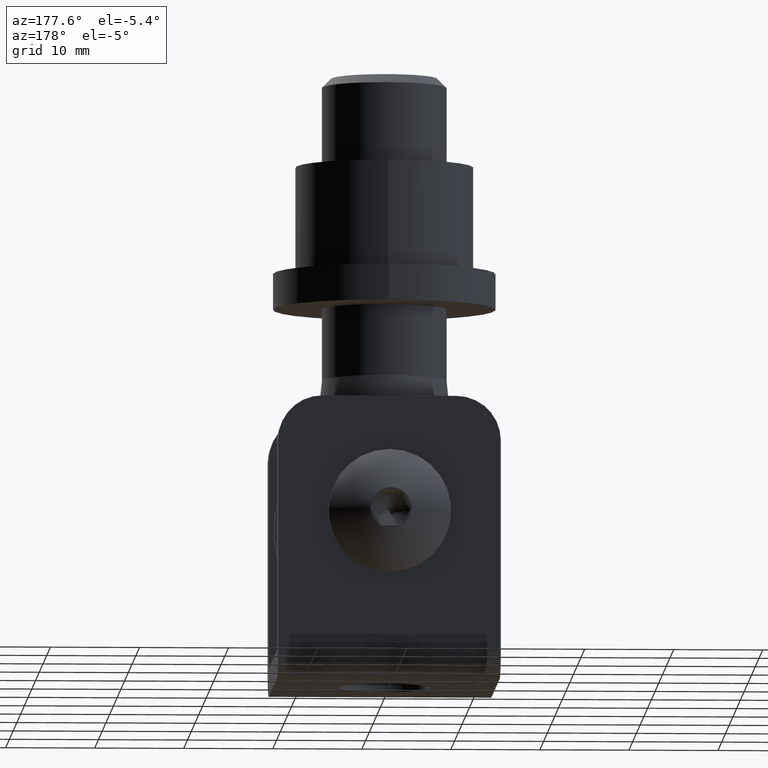
[diagram: clean part render]
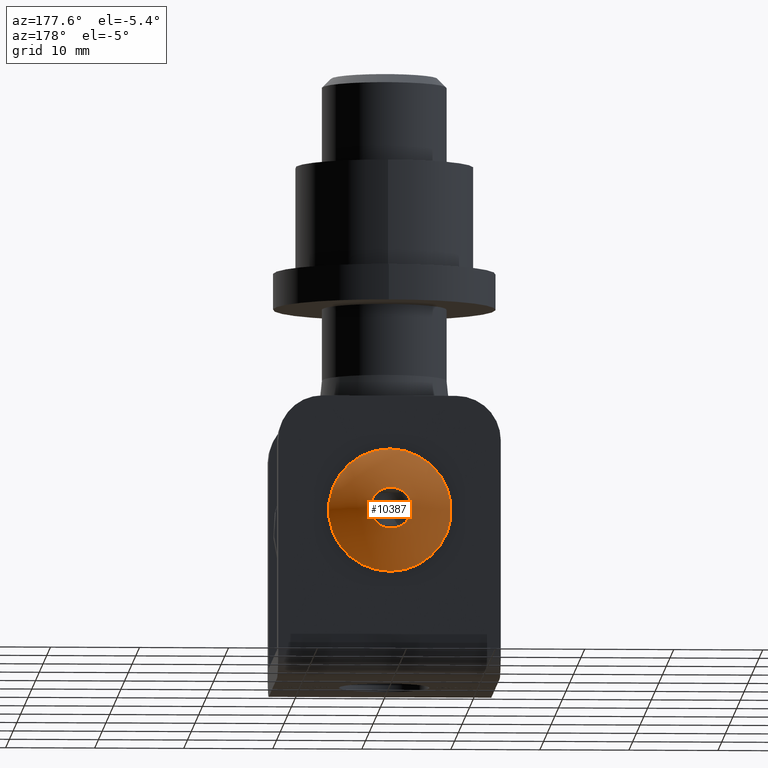
[diagram: same view with one face highlighted and labeled with its STEP entity id]
A machine part, auxiliary view. The second image highlights one B-rep face of the part: STEP entity #10387.
In plain terms, the highlighted spherical surface has radius 8.8524 mm.
Its self-contained STEP definition (entity closure, byte-faithful):
#963 = VERTEX_POINT ( 'NONE', #3414 ) ;
#1939 = DIRECTION ( 'NONE',  ( -0.0000000000000000000, -1.000000000000000000, -0.0000000000000000000 ) ) ;
#1954 = ORIENTED_EDGE ( 'NONE', *, *, #11834, .F. ) ;
#2092 = CIRCLE ( 'NONE', #4314, 2.310000000000000100 ) ;
#3017 = CARTESIAN_POINT ( 'NONE',  ( 0.0000000000000000000, 6.454349999999996300, 0.0000000000000000000 ) ) ;
#3414 = CARTESIAN_POINT ( 'NONE',  ( 0.0000000000000000000, 15.00000000000000200, -2.310000000000000100 ) ) ;
#3465 = AXIS2_PLACEMENT_3D ( 'NONE', #9217, #5252, #11292 ) ;
#3535 = SPHERICAL_SURFACE ( 'NONE', #9774, 8.852357534719214300 ) ;
#4025 = DIRECTION ( 'NONE',  ( 0.0000000000000000000, 0.0000000000000000000, 1.000000000000000000 ) ) ;
#4311 = CIRCLE ( 'NONE', #3465, 6.899999999999998600 ) ;
#4314 = AXIS2_PLACEMENT_3D ( 'NONE', #9876, #1939, #13021 ) ;
#4650 = EDGE_CURVE ( 'NONE', #963, #963, #2092, .T. ) ;
#4778 = ORIENTED_EDGE ( 'NONE', *, *, #4650, .T. ) ;
#5252 = DIRECTION ( 'NONE',  ( -0.0000000000000000000, -1.000000000000000000, -0.0000000000000000000 ) ) ;
#5523 = VERTEX_POINT ( 'NONE', #10451 ) ;
#6197 = FACE_OUTER_BOUND ( 'NONE', #10820, .T. ) ;
#7072 = DIRECTION ( 'NONE',  ( 1.000000000000000000, 0.0000000000000000000, 0.0000000000000000000 ) ) ;
#9217 = CARTESIAN_POINT ( 'NONE',  ( 0.0000000000000000000, 12.00000000000000200, 0.0000000000000000000 ) ) ;
#9774 = AXIS2_PLACEMENT_3D ( 'NONE', #3017, #4025, #7072 ) ;
#9852 = EDGE_LOOP ( 'NONE', ( #1954 ) ) ;
#9876 = CARTESIAN_POINT ( 'NONE',  ( 0.0000000000000000000, 15.00000000000000200, 0.0000000000000000000 ) ) ;
#10387 = ADVANCED_FACE ( 'NONE', ( #6197, #11541 ), #3535, .T. ) ;
#10451 = CARTESIAN_POINT ( 'NONE',  ( 0.0000000000000000000, 12.00000000000000200, -6.899999999999998600 ) ) ;
#10820 = EDGE_LOOP ( 'NONE', ( #4778 ) ) ;
#11292 = DIRECTION ( 'NONE',  ( 0.0000000000000000000, 0.0000000000000000000, -1.000000000000000000 ) ) ;
#11541 = FACE_OUTER_BOUND ( 'NONE', #9852, .T. ) ;
#11834 = EDGE_CURVE ( 'NONE', #5523, #5523, #4311, .T. ) ;
#13021 = DIRECTION ( 'NONE',  ( 0.0000000000000000000, 0.0000000000000000000, -1.000000000000000000 ) ) ;